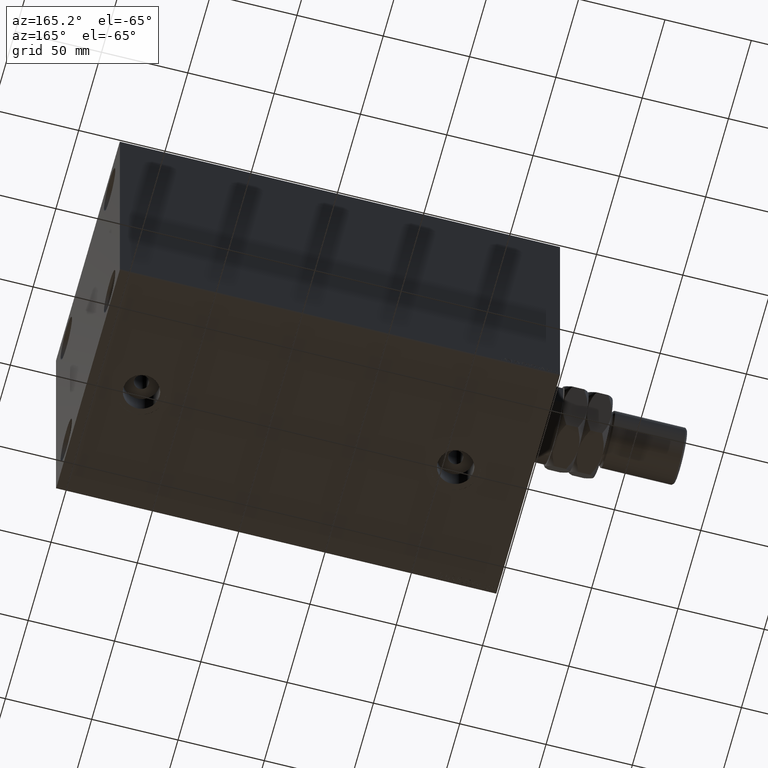
[diagram: clean part render]
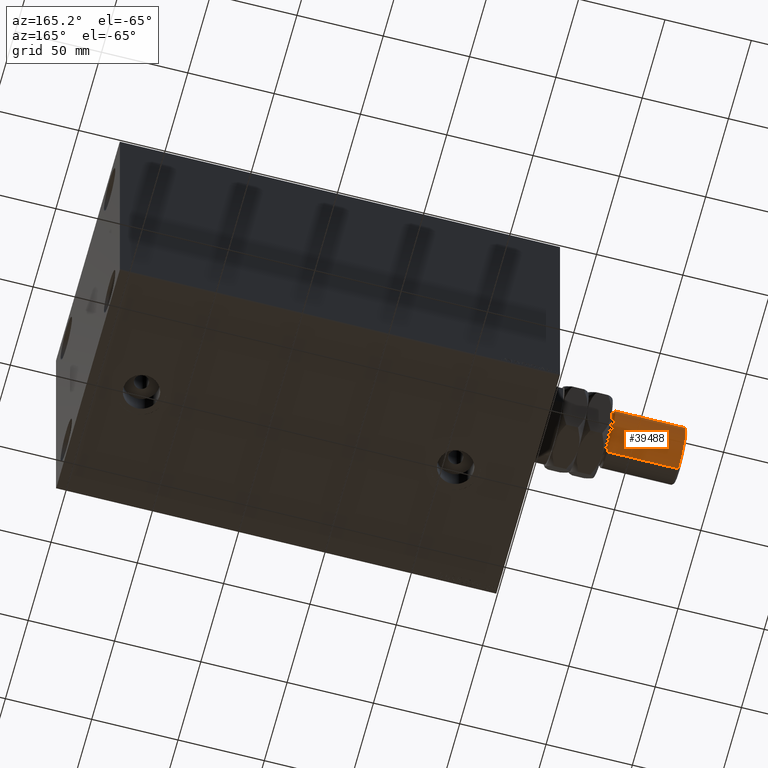
[diagram: same view with one face highlighted and labeled with its STEP entity id]
A machine part, auxiliary view. The second image highlights one B-rep face of the part: STEP entity #39488.
In plain terms, the highlighted cylindrical surface (edge-blend (fillet) strip) has radius 16.5 mm, axis along (1, -0, -0).
Its self-contained STEP definition (entity closure, byte-faithful):
#1939 = ORIENTED_EDGE ( 'NONE', *, *, #3744, .T. ) ;
#2459 = CARTESIAN_POINT ( 'NONE',  ( -16.50000000000000000, 0.000000000000000000, 30.99999999999998579 ) ) ;
#2497 = AXIS2_PLACEMENT_3D ( 'NONE', #43801, #32621, #3881 ) ;
#3744 = EDGE_CURVE ( 'NONE', #9773, #16702, #5444, .T. ) ;
#3881 = DIRECTION ( 'NONE',  ( -1.000000000000000000, 0.000000000000000000, 0.000000000000000000 ) ) ;
#3919 = LINE ( 'NONE', #32899, #8215 ) ;
#4710 = CIRCLE ( 'NONE', #9270, 16.50000000000000000 ) ;
#4834 = EDGE_CURVE ( 'NONE', #30489, #9773, #6968, .T. ) ;
#5444 = CIRCLE ( 'NONE', #31993, 16.50000000000000000 ) ;
#5626 = DIRECTION ( 'NONE',  ( -0.000000000000000000, -0.000000000000000000, 1.000000000000000000 ) ) ;
#5955 = CARTESIAN_POINT ( 'NONE',  ( -16.50000000000000000, 0.000000000000000000, 72.00000000000000000 ) ) ;
#6968 = LINE ( 'NONE', #43328, #39482 ) ;
#8215 = VECTOR ( 'NONE', #33593, 1000.000000000000000 ) ;
#9270 = AXIS2_PLACEMENT_3D ( 'NONE', #46070, #38926, #23961 ) ;
#9370 = VERTEX_POINT ( 'NONE', #5955 ) ;
#9773 = VERTEX_POINT ( 'NONE', #34784 ) ;
#11007 = CYLINDRICAL_SURFACE ( 'NONE', #2497, 16.50000000000000000 ) ;
#11248 = ORIENTED_EDGE ( 'NONE', *, *, #30413, .T. ) ;
#14913 = CARTESIAN_POINT ( 'NONE',  ( 16.50000000000000000, 2.020667218593133100E-15, 72.00000000000000000 ) ) ;
#16693 = EDGE_CURVE ( 'NONE', #9370, #16702, #3919, .T. ) ;
#16702 = VERTEX_POINT ( 'NONE', #2459 ) ;
#16783 = DIRECTION ( 'NONE',  ( 1.000000000000000000, 0.000000000000000000, 0.000000000000000000 ) ) ;
#21701 = ORIENTED_EDGE ( 'NONE', *, *, #16693, .F. ) ;
#23961 = DIRECTION ( 'NONE',  ( 1.000000000000000000, 0.000000000000000000, 0.000000000000000000 ) ) ;
#26224 = ORIENTED_EDGE ( 'NONE', *, *, #4834, .T. ) ;
#30413 = EDGE_CURVE ( 'NONE', #9370, #30489, #4710, .T. ) ;
#30489 = VERTEX_POINT ( 'NONE', #14913 ) ;
#31680 = DIRECTION ( 'NONE',  ( -0.000000000000000000, -0.000000000000000000, -1.000000000000000000 ) ) ;
#31993 = AXIS2_PLACEMENT_3D ( 'NONE', #45784, #5626, #16783 ) ;
#32621 = DIRECTION ( 'NONE',  ( -0.000000000000000000, -0.000000000000000000, -1.000000000000000000 ) ) ;
#32899 = CARTESIAN_POINT ( 'NONE',  ( -16.50000000000000000, 0.000000000000000000, 73.00000000000000000 ) ) ;
#33593 = DIRECTION ( 'NONE',  ( -0.000000000000000000, -0.000000000000000000, -1.000000000000000000 ) ) ;
#34784 = CARTESIAN_POINT ( 'NONE',  ( 16.50000000000000000, 2.020667218593133100E-15, 30.99999999999998579 ) ) ;
#38926 = DIRECTION ( 'NONE',  ( 0.000000000000000000, 0.000000000000000000, -1.000000000000000000 ) ) ;
#39482 = VECTOR ( 'NONE', #31680, 1000.000000000000000 ) ;
#39488 = ADVANCED_FACE ( 'NONE', ( #39990 ), #11007, .T. ) ;
#39990 = FACE_OUTER_BOUND ( 'NONE', #45452, .T. ) ;
#43328 = CARTESIAN_POINT ( 'NONE',  ( 16.50000000000000000, 2.020667218593133100E-15, 73.00000000000000000 ) ) ;
#43801 = CARTESIAN_POINT ( 'NONE',  ( 0.000000000000000000, 0.000000000000000000, 73.00000000000000000 ) ) ;
#45452 = EDGE_LOOP ( 'NONE', ( #11248, #26224, #1939, #21701 ) ) ;
#45784 = CARTESIAN_POINT ( 'NONE',  ( 0.000000000000000000, 0.000000000000000000, 30.99999999999998579 ) ) ;
#46070 = CARTESIAN_POINT ( 'NONE',  ( 0.000000000000000000, 0.000000000000000000, 72.00000000000000000 ) ) ;